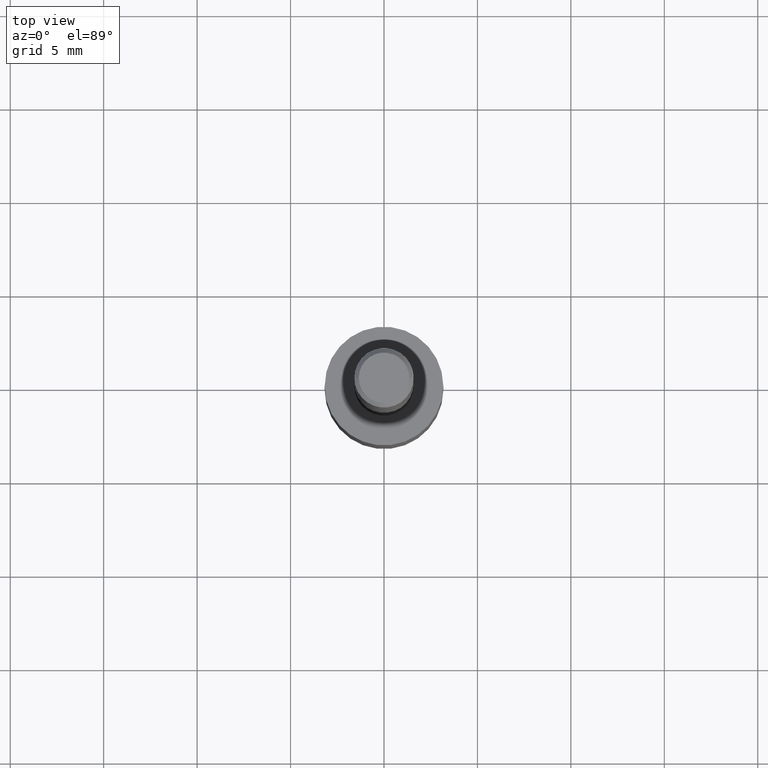
[diagram: clean part render]
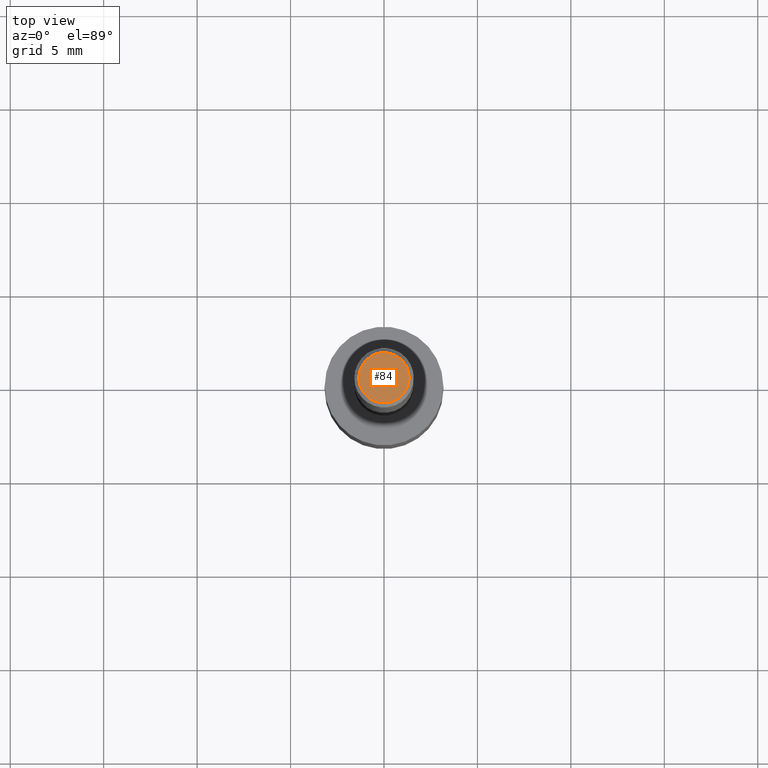
[diagram: same view with one face highlighted and labeled with its STEP entity id]
A machine part, top view. The second image highlights one B-rep face of the part: STEP entity #84.
In plain terms, the highlighted planar face has unit normal (0, -0, -1).
Its self-contained STEP definition (entity closure, byte-faithful):
#43 = PLANE ( 'NONE',  #303 ) ;
#73 = DIRECTION ( 'NONE',  ( -2.445468806185136597E-29, 3.491481338843145583E-15, 1.000000000000000000 ) ) ;
#78 = CIRCLE ( 'NONE', #103, 0.05312499999999999861 ) ;
#84 = ADVANCED_FACE ( 'NONE', ( #231 ), #43, .F. ) ;
#93 = VERTEX_POINT ( 'NONE', #149 ) ;
#103 = AXIS2_PLACEMENT_3D ( 'NONE', #121, #73, #253 ) ;
#114 = ORIENTED_EDGE ( 'NONE', *, *, #242, .T. ) ;
#118 = DIRECTION ( 'NONE',  ( -1.000000000000000000, 6.982962677686265922E-15, -4.876176775795935793E-29 ) ) ;
#121 = CARTESIAN_POINT ( 'NONE',  ( -7.487088864773345706E-50, 1.068957861474247695E-35, 3.061616997868395197E-21 ) ) ;
#126 = AXIS2_PLACEMENT_3D ( 'NONE', #256, #337, #288 ) ;
#149 = CARTESIAN_POINT ( 'NONE',  ( 0.05312499999999999861, -4.129888592719939842E-16, 3.061617000609493422E-21 ) ) ;
#170 = VERTEX_POINT ( 'NONE', #308 ) ;
#188 = EDGE_CURVE ( 'NONE', #93, #170, #283, .T. ) ;
#196 = ORIENTED_EDGE ( 'NONE', *, *, #188, .T. ) ;
#202 = DIRECTION ( 'NONE',  ( 2.438088387897960049E-29, -3.491481338843145188E-15, -1.000000000000000000 ) ) ;
#231 = FACE_OUTER_BOUND ( 'NONE', #298, .T. ) ;
#233 = CARTESIAN_POINT ( 'NONE',  ( -3.743544432386672853E-50, 5.344789307371238476E-36, 1.530808498934197599E-21 ) ) ;
#242 = EDGE_CURVE ( 'NONE', #170, #93, #78, .T. ) ;
#253 = DIRECTION ( 'NONE',  ( 1.000000000000000000, -6.982962677686266711E-15, 4.876176628004948512E-29 ) ) ;
#256 = CARTESIAN_POINT ( 'NONE',  ( -7.487088864773345706E-50, 1.068957861474247695E-35, 3.061616997868395197E-21 ) ) ;
#283 = CIRCLE ( 'NONE', #126, 0.05312499999999999861 ) ;
#288 = DIRECTION ( 'NONE',  ( 1.000000000000000000, -6.982962677686266711E-15, 4.876176628004948512E-29 ) ) ;
#298 = EDGE_LOOP ( 'NONE', ( #114, #196 ) ) ;
#303 = AXIS2_PLACEMENT_3D ( 'NONE', #233, #202, #118 ) ;
#308 = CARTESIAN_POINT ( 'NONE',  ( -0.05312499999999999861, 3.873362110279099094E-16, 3.061616995216862494E-21 ) ) ;
#337 = DIRECTION ( 'NONE',  ( -2.445468806185136597E-29, 3.491481338843145583E-15, 1.000000000000000000 ) ) ;